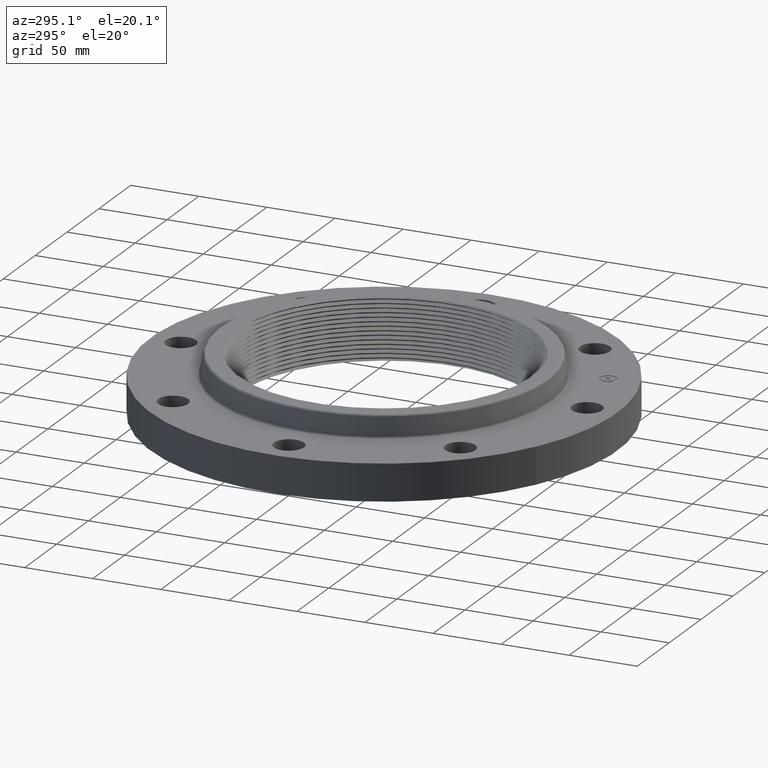
[diagram: clean part render]
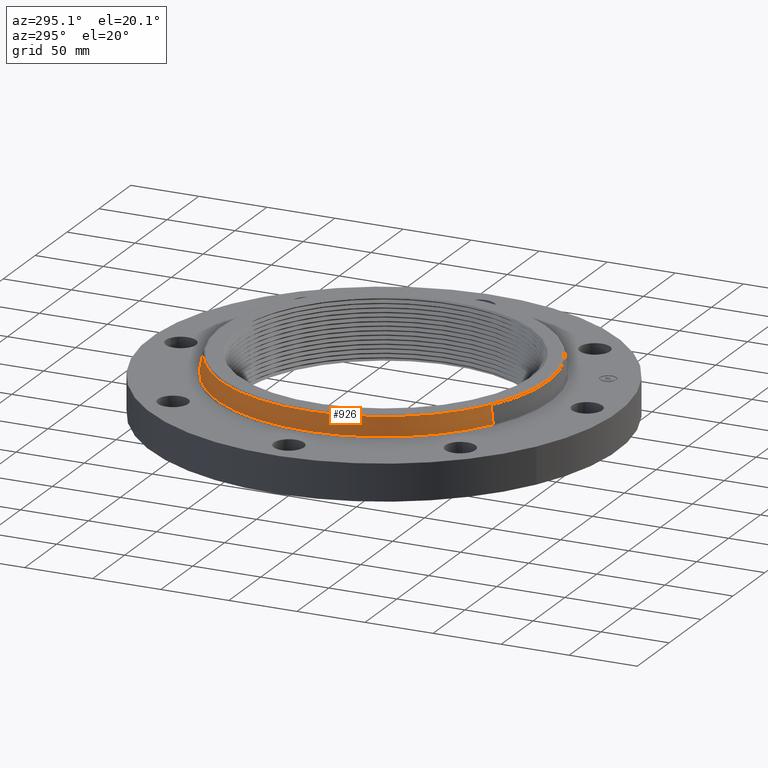
[diagram: same view with one face highlighted and labeled with its STEP entity id]
A machine part, auxiliary view. The second image highlights one B-rep face of the part: STEP entity #926.
In plain terms, the highlighted conical surface has half-angle 10 deg.
Its self-contained STEP definition (entity closure, byte-faithful):
#860=AXIS2_PLACEMENT_3D('Circle Axis2P3D',#858,#859,$) ;
#899=AXIS2_PLACEMENT_3D('Cone Axis2P3D',#896,#897,#898) ;
#903=AXIS2_PLACEMENT_3D('Circle Axis2P3D',#901,#902,$) ;
#858=CARTESIAN_POINT('Axis2P3D Location',(0.,0.,1.64041889067)) ;
#862=CARTESIAN_POINT('Vertex',(-2.27375064188,-4.16207263221,1.64041889067)) ;
#864=CARTESIAN_POINT('Vertex',(2.27375064188,4.16207263221,1.64041889067)) ;
#896=CARTESIAN_POINT('Axis2P3D Location',(0.,0.,1.64041889067)) ;
#901=CARTESIAN_POINT('Axis2P3D Location',(0.,0.,1.10958110934)) ;
#905=CARTESIAN_POINT('Vertex',(-2.31862536286,-4.24421525796,1.10958110934)) ;
#907=CARTESIAN_POINT('Vertex',(2.31862536286,4.24421525796,1.10958110934)) ;
#910=CARTESIAN_POINT('Line Origine',(-2.29618800237,-4.20314394509,1.37500000001)) ;
#915=CARTESIAN_POINT('Line Origine',(2.29618800237,4.20314394509,1.37500000001)) ;
#859=DIRECTION('Axis2P3D Direction',(0.,0.,-0.0393700787402)) ;
#897=DIRECTION('Axis2P3D Direction',(0.,0.,-0.0393700787402)) ;
#898=DIRECTION('Axis2P3D XDirection',(0.0188750212049,0.0345504945626,0.)) ;
#902=DIRECTION('Axis2P3D Direction',(0.,0.,-0.0393700787402)) ;
#911=DIRECTION('Vector Direction',(-0.00327761303565,-0.00599963041829,-0.03877195878)) ;
#916=DIRECTION('Vector Direction',(0.00327761303565,0.00599963041829,-0.03877195878)) ;
#912=VECTOR('Line Direction',#911,0.0393700787402) ;
#917=VECTOR('Line Direction',#916,0.0393700787402) ;
#921=ORIENTED_EDGE('',*,*,#909,.F.) ;
#922=ORIENTED_EDGE('',*,*,#914,.T.) ;
#923=ORIENTED_EDGE('',*,*,#866,.T.) ;
#924=ORIENTED_EDGE('',*,*,#919,.F.) ;
#926=ADVANCED_FACE('PartBody',(#925),#900,.T.) ;
#861=CIRCLE('generated circle',#860,4.74265648948) ;
#904=CIRCLE('generated circle',#903,4.83625751271) ;
#900=CONICAL_SURFACE('Cone',#899,4.74265648948,0.174532925199) ;
#866=EDGE_CURVE('',#863,#865,#861,.T.) ;
#909=EDGE_CURVE('',#906,#908,#904,.T.) ;
#914=EDGE_CURVE('',#906,#863,#913,.F.) ;
#919=EDGE_CURVE('',#908,#865,#918,.F.) ;
#920=EDGE_LOOP('',(#921,#922,#923,#924)) ;
#925=FACE_OUTER_BOUND('',#920,.T.) ;
#913=LINE('Line',#910,#912) ;
#918=LINE('Line',#915,#917) ;
#863=VERTEX_POINT('',#862) ;
#865=VERTEX_POINT('',#864) ;
#906=VERTEX_POINT('',#905) ;
#908=VERTEX_POINT('',#907) ;